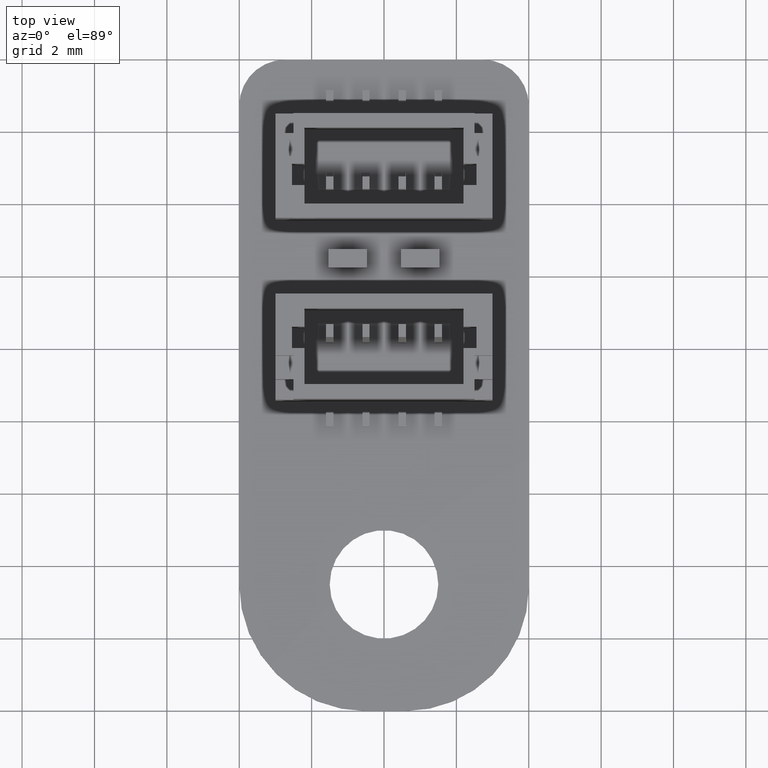
[diagram: clean part render]
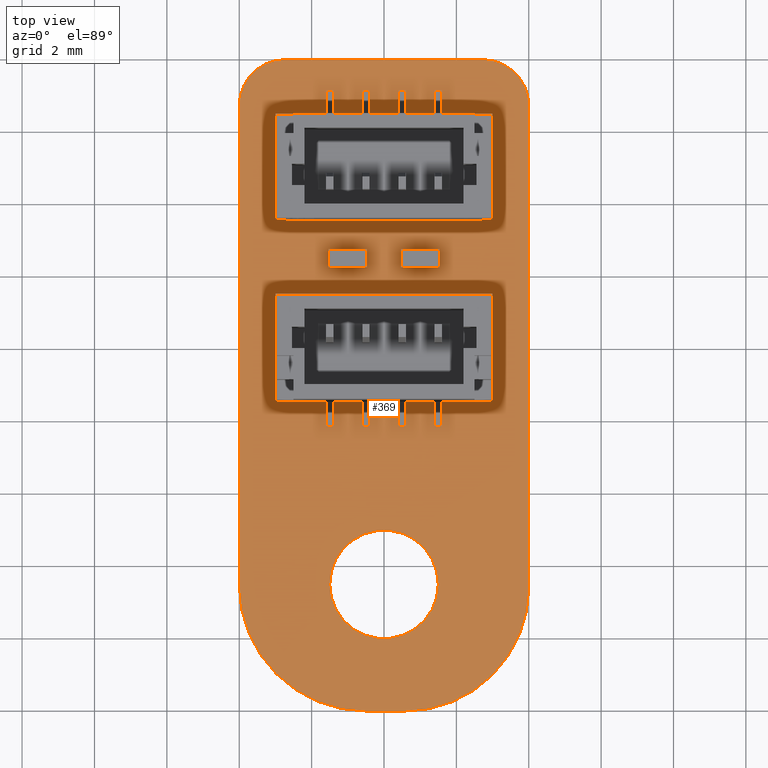
[diagram: same view with one face highlighted and labeled with its STEP entity id]
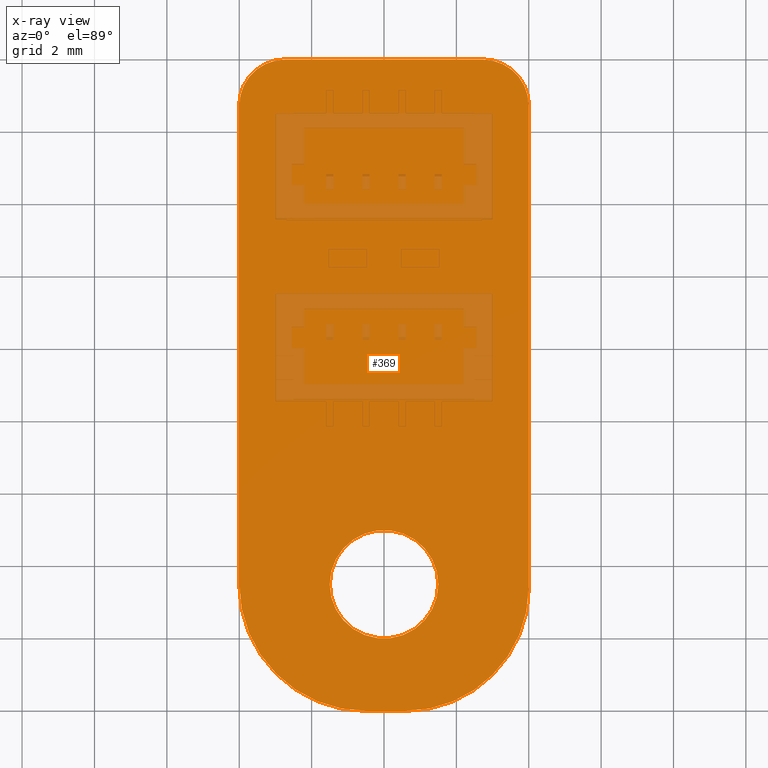
[diagram: x-ray of the same camera — body ghosted, the highlighted face saturated]
A machine part, top view. The second image highlights one B-rep face of the part: STEP entity #369.
The next image is the same camera in x-ray: the body ghosted, the highlighted face saturated — about 13% of this face is hidden behind the body in this view.
In plain terms, the highlighted planar face has unit normal (-0, -0, -1).
Its self-contained STEP definition (entity closure, byte-faithful):
#68 = VERTEX_POINT('',#69);
#69 = CARTESIAN_POINT('',(0.,3.5,0.1970024));
#75 = EDGE_CURVE('',#68,#76,#78,.T.);
#76 = VERTEX_POINT('',#77);
#77 = CARTESIAN_POINT('',(7.771561172376E-16,16.73,0.1970024));
#78 = LINE('',#79,#80);
#79 = CARTESIAN_POINT('',(0.,3.5,0.1970024));
#80 = VECTOR('',#81,1.);
#81 = DIRECTION('',(0.,1.,0.));
#106 = EDGE_CURVE('',#76,#107,#109,.T.);
#107 = VERTEX_POINT('',#108);
#108 = CARTESIAN_POINT('',(1.27,18.,0.1970024));
#109 = CIRCLE('',#110,1.270087455482);
#110 = AXIS2_PLACEMENT_3D('',#111,#112,#113);
#111 = CARTESIAN_POINT('',(1.270087452471,16.729912547529,0.1970024));
#112 = DIRECTION('',(0.,0.,-1.));
#113 = DIRECTION('',(-0.999999997629,6.885547219767E-05,0.));
#139 = EDGE_CURVE('',#107,#140,#142,.T.);
#140 = VERTEX_POINT('',#141);
#141 = CARTESIAN_POINT('',(6.73,18.,0.1970024));
#142 = LINE('',#143,#144);
#143 = CARTESIAN_POINT('',(1.27,18.,0.1970024));
#144 = VECTOR('',#145,1.);
#145 = DIRECTION('',(1.,0.,0.));
#170 = EDGE_CURVE('',#140,#171,#173,.T.);
#171 = VERTEX_POINT('',#172);
#172 = CARTESIAN_POINT('',(8.,16.73,0.1970024));
#173 = CIRCLE('',#174,1.270087455482);
#174 = AXIS2_PLACEMENT_3D('',#175,#176,#177);
#175 = CARTESIAN_POINT('',(6.729912547529,16.729912547529,0.1970024));
#176 = DIRECTION('',(0.,0.,-1.));
#177 = DIRECTION('',(6.885547219977E-05,0.999999997629,0.));
#203 = EDGE_CURVE('',#171,#204,#206,.T.);
#204 = VERTEX_POINT('',#205);
#205 = CARTESIAN_POINT('',(8.,3.414,0.1970024));
#206 = LINE('',#207,#208);
#207 = CARTESIAN_POINT('',(8.,16.73,0.1970024));
#208 = VECTOR('',#209,1.);
#209 = DIRECTION('',(0.,-1.,0.));
#234 = EDGE_CURVE('',#204,#235,#237,.T.);
#235 = VERTEX_POINT('',#236);
#236 = CARTESIAN_POINT('',(4.586,-6.661338147751E-16,0.1970024));
#237 = CIRCLE('',#238,3.414213585181);
#238 = AXIS2_PLACEMENT_3D('',#239,#240,#241);
#239 = CARTESIAN_POINT('',(4.585786421499,3.414213578501,0.1970024));
#240 = DIRECTION('',(0.,0.,-1.));
#241 = DIRECTION('',(0.999999998043,-6.255569412377E-05,0.));
#267 = EDGE_CURVE('',#235,#268,#270,.T.);
#268 = VERTEX_POINT('',#269);
#269 = CARTESIAN_POINT('',(3.5,0.,0.1970024));
#270 = LINE('',#271,#272);
#271 = CARTESIAN_POINT('',(4.586,0.,0.1970024));
#272 = VECTOR('',#273,1.);
#273 = DIRECTION('',(-1.,0.,0.));
#298 = EDGE_CURVE('',#268,#68,#299,.T.);
#299 = CIRCLE('',#300,3.499568992062);
#300 = AXIS2_PLACEMENT_3D('',#301,#302,#303);
#301 = CARTESIAN_POINT('',(3.499568965517,3.499568965517,0.1970024));
#302 = DIRECTION('',(0.,0.,-1.));
#303 = DIRECTION('',(1.231678768834E-04,-0.999999992415,0.));
#324 = VERTEX_POINT('',#325);
#325 = CARTESIAN_POINT('',(5.5,3.5,0.1970024));
#331 = EDGE_CURVE('',#324,#324,#332,.T.);
#332 = CIRCLE('',#333,1.5);
#333 = AXIS2_PLACEMENT_3D('',#334,#335,#336);
#334 = CARTESIAN_POINT('',(4.,3.5,0.1970024));
#335 = DIRECTION('',(0.,0.,1.));
#336 = DIRECTION('',(1.,0.,-0.));
#369 = ADVANCED_FACE('',(#370,#380),#383,.F.);
#370 = FACE_BOUND('',#371,.F.);
#371 = EDGE_LOOP('',(#372,#373,#374,#375,#376,#377,#378,#379));
#372 = ORIENTED_EDGE('',*,*,#75,.T.);
#373 = ORIENTED_EDGE('',*,*,#106,.T.);
#374 = ORIENTED_EDGE('',*,*,#139,.T.);
#375 = ORIENTED_EDGE('',*,*,#170,.T.);
#376 = ORIENTED_EDGE('',*,*,#203,.T.);
#377 = ORIENTED_EDGE('',*,*,#234,.T.);
#378 = ORIENTED_EDGE('',*,*,#267,.T.);
#379 = ORIENTED_EDGE('',*,*,#298,.T.);
#380 = FACE_BOUND('',#381,.F.);
#381 = EDGE_LOOP('',(#382));
#382 = ORIENTED_EDGE('',*,*,#331,.T.);
#383 = PLANE('',#384);
#384 = AXIS2_PLACEMENT_3D('',#385,#386,#387);
#385 = CARTESIAN_POINT('',(4.004275852741,9.406030468243,0.1970024));
#386 = DIRECTION('',(-0.,-0.,-1.));
#387 = DIRECTION('',(-1.,0.,0.));